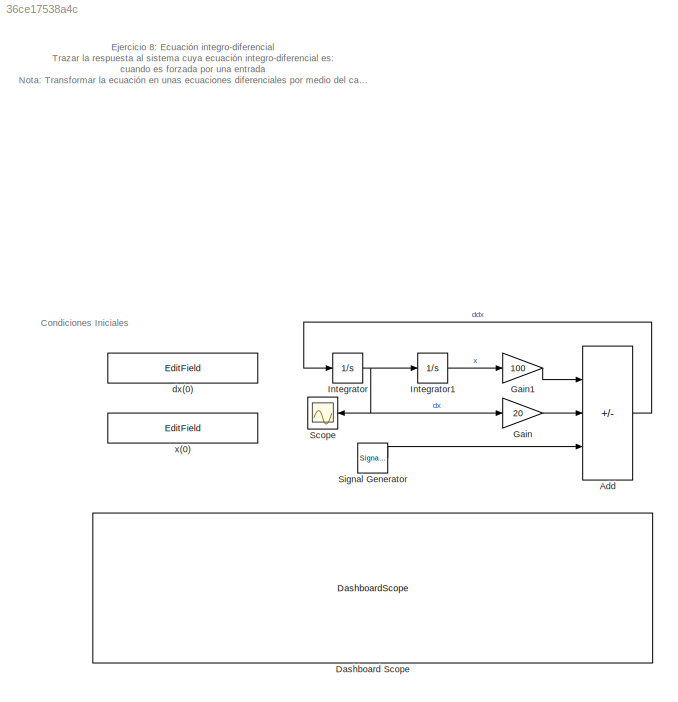
MODEL slx_36ce17538a4c
KIND model
CONFIG AbsTol = auto
CONFIG EnableMultiTasking = off
CONFIG FixedStep = auto
CONFIG MaxStep = 0.01
CONFIG MinStep = auto
CONFIG RelTol = 1e-3
CONFIG SampleTimeConstraint = Unconstrained
CONFIG SolverName = VariableStepAuto
CONFIG StartTime = 0.0
CONFIG StopTime = 100
BLOCK [Sum] Add
  IconShape = rectangular
  Inputs = --+
BLOCK [DashboardScope] Dashboard Scope
  NormalizeYAxis = on
  ShowInitialText = off
BLOCK [Gain] Gain
  Gain = 20
BLOCK [Gain] Gain1
  Gain = 100
BLOCK [Integrator] Integrator
  InitialCondition = 0.1
BLOCK [Integrator] Integrator1
BLOCK [Scope] Scope
  Floating = off
  NumInputPorts = 1
  ScopeSpecificationString = Simulink.scopes.TimeScopeBlockCfg('CurrentConfiguration', extmgr.ConfigurationSet(extmgr.Configuration('Core','General UI',true),extmgr.Configuration('Core','Source UI',true),extmgr.Configuration('Sources','WiredSimulink',true),extmgr.Configuration('Visuals','Time Domain',true,'SerializedDisplays',{struct('MinYLimReal','-0.09019','MaxYLimReal','0.12113','YLabelReal','','MinYLimMag','0.00000','MaxY...<+1348ch>
BLOCK [SignalGenerator] Signal Generator
  Amplitude = 2
  Frequency = 4
  Units = rad/sec
BLOCK [EditField] dx(0)
  Alignment = Center
  LabelPosition = Hide
  ShowInitialText = on
BLOCK [EditField] x(0)
  Alignment = Center
  LabelPosition = Hide
  ShowInitialText = on
ANNOTATION (root): Condiciones Iniciales
ANNOTATION (root): E jercicio 8: Ecuación integro-diferencial Trazar la respuesta al sistema cuya ecuación integro-diferencial es: cuando es forzada por una entrada Nota: Transformar la ecuación en unas ecuaciones diferenciales por medio del cambio de variable:
LINE Add:1 -> Integrator:1
LINE Gain1:1 -> Add:1
LINE Gain:1 -> Add:2
LINE Integrator1:1 -> Gain1:1
NET Integrator:1 -> Gain:1, Integrator1:1, Scope:1
LINE Signal Generator:1 -> Add:3
note: NET lines group one-source signal fan-out (src -> all destinations, sorted); 1:1 wires keep LINE
